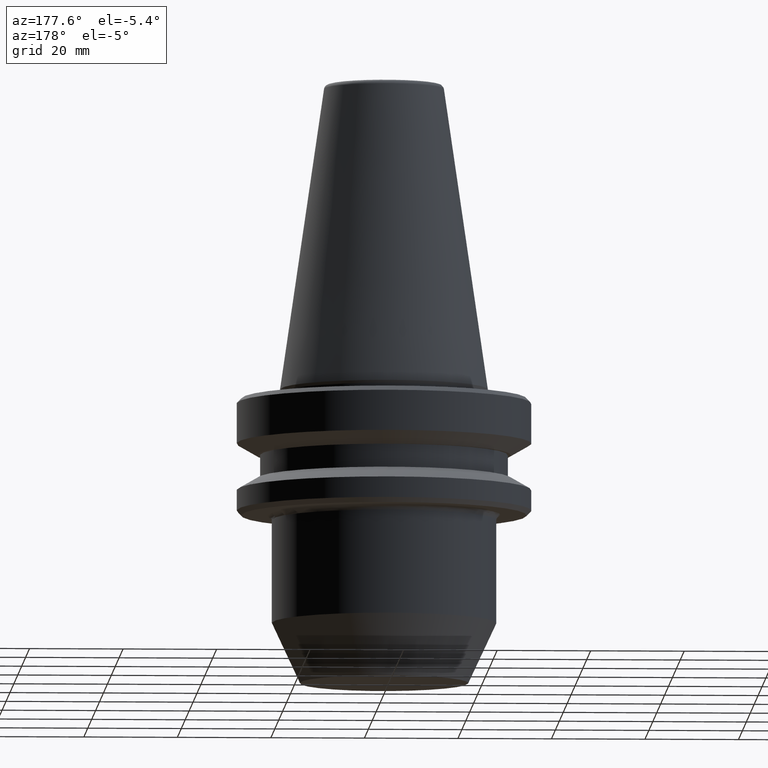
[diagram: clean part render]
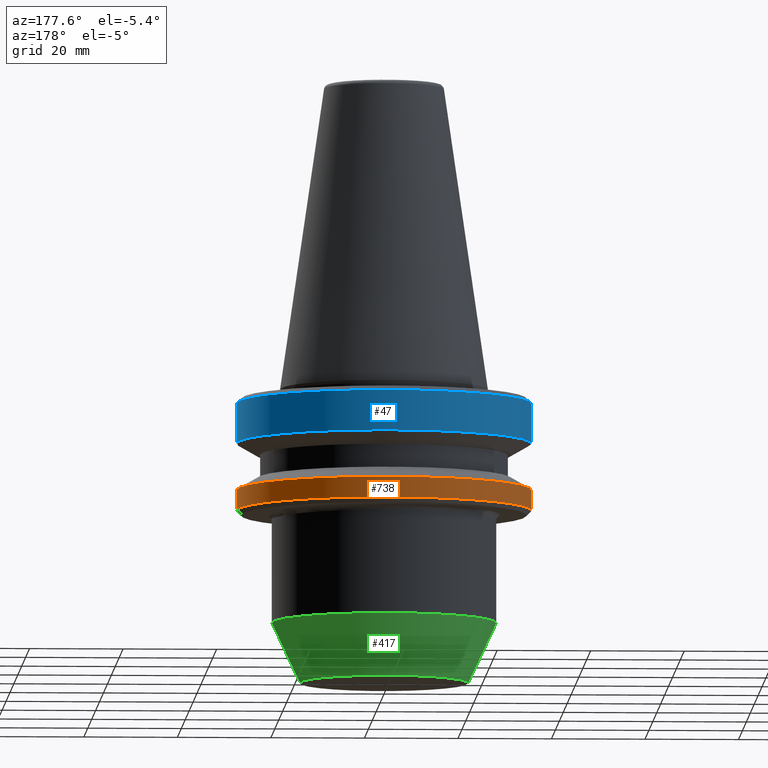
[diagram: same view with three faces highlighted in distinct colors, each labeled with its STEP entity id]
A machine part, auxiliary view with three faces highlighted in distinct colors.
Their STEP definitions:

[orange] entity #738 — the highlighted cylindrical surface (partial cylindrical patch) has radius 31.5 mm, axis along (-0, -0, 1).
#57 = ORIENTED_EDGE ( 'NONE', *, *, #1008, .T. ) ;
#64 = VECTOR ( 'NONE', #806, 1000.000000000000000 ) ;
#99 = CARTESIAN_POINT ( 'NONE',  ( -31.50000000000019500, 3.857637417314186400E-015, -25.31128678844346400 ) ) ;
#157 = VERTEX_POINT ( 'NONE', #99 ) ;
#183 = AXIS2_PLACEMENT_3D ( 'NONE', #757, #687, #272 ) ;
#192 = ORIENTED_EDGE ( 'NONE', *, *, #643, .T. ) ;
#232 = AXIS2_PLACEMENT_3D ( 'NONE', #519, #250, #366 ) ;
#250 = DIRECTION ( 'NONE',  ( -0.0000000000000000000, -0.0000000000000000000, 1.000000000000000000 ) ) ;
#272 = DIRECTION ( 'NONE',  ( 1.000000000000000000, 0.0000000000000000000, 0.0000000000000000000 ) ) ;
#289 = LINE ( 'NONE', #544, #906 ) ;
#292 = EDGE_LOOP ( 'NONE', ( #192, #57, #864, #689 ) ) ;
#366 = DIRECTION ( 'NONE',  ( 1.000000000000000000, 0.0000000000000000000, 0.0000000000000000000 ) ) ;
#367 = DIRECTION ( 'NONE',  ( -0.0000000000000000000, -0.0000000000000000000, 1.000000000000000000 ) ) ;
#369 = AXIS2_PLACEMENT_3D ( 'NONE', #1017, #945, #485 ) ;
#418 = CYLINDRICAL_SURFACE ( 'NONE', #183, 31.50000000000019500 ) ;
#436 = EDGE_CURVE ( 'NONE', #883, #709, #1027, .T. ) ;
#442 = FACE_OUTER_BOUND ( 'NONE', #292, .T. ) ;
#485 = DIRECTION ( 'NONE',  ( 1.000000000000000000, 0.0000000000000000000, 0.0000000000000000000 ) ) ;
#519 = CARTESIAN_POINT ( 'NONE',  ( 0.0000000000000000000, 0.0000000000000000000, -25.31128678844346400 ) ) ;
#544 = CARTESIAN_POINT ( 'NONE',  ( -31.50000000000019500, 3.857637417314186400E-015, 82.74845858742440900 ) ) ;
#578 = VERTEX_POINT ( 'NONE', #640 ) ;
#640 = CARTESIAN_POINT ( 'NONE',  ( 31.50000000000019500, 0.0000000000000000000, -25.31128678844346400 ) ) ;
#643 = EDGE_CURVE ( 'NONE', #578, #157, #877, .T. ) ;
#687 = DIRECTION ( 'NONE',  ( -0.0000000000000000000, -0.0000000000000000000, 1.000000000000000000 ) ) ;
#689 = ORIENTED_EDGE ( 'NONE', *, *, #997, .F. ) ;
#709 = VERTEX_POINT ( 'NONE', #1026 ) ;
#738 = ADVANCED_FACE ( 'NONE', ( #442 ), #418, .T. ) ;
#757 = CARTESIAN_POINT ( 'NONE',  ( 0.0000000000000000000, 0.0000000000000000000, 82.74845858742440900 ) ) ;
#806 = DIRECTION ( 'NONE',  ( -0.0000000000000000000, -0.0000000000000000000, 1.000000000000000000 ) ) ;
#864 = ORIENTED_EDGE ( 'NONE', *, *, #436, .F. ) ;
#877 = CIRCLE ( 'NONE', #232, 31.50000000000019500 ) ;
#883 = VERTEX_POINT ( 'NONE', #942 ) ;
#906 = VECTOR ( 'NONE', #367, 1000.000000000000000 ) ;
#911 = CARTESIAN_POINT ( 'NONE',  ( 31.50000000000019500, 0.0000000000000000000, 82.74845858742440900 ) ) ;
#926 = LINE ( 'NONE', #911, #64 ) ;
#942 = CARTESIAN_POINT ( 'NONE',  ( 31.50000000000019500, 0.0000000000000000000, -20.91142879476059900 ) ) ;
#945 = DIRECTION ( 'NONE',  ( -0.0000000000000000000, -0.0000000000000000000, 1.000000000000000000 ) ) ;
#997 = EDGE_CURVE ( 'NONE', #578, #883, #926, .T. ) ;
#1008 = EDGE_CURVE ( 'NONE', #157, #709, #289, .T. ) ;
#1017 = CARTESIAN_POINT ( 'NONE',  ( 0.0000000000000000000, 0.0000000000000000000, -20.91142879476059900 ) ) ;
#1026 = CARTESIAN_POINT ( 'NONE',  ( -31.50000000000019500, 3.857637417314186400E-015, -20.91142879476059900 ) ) ;
#1027 = CIRCLE ( 'NONE', #369, 31.50000000000019500 ) ;

[blue] entity #47 — the highlighted cylindrical surface (partial cylindrical patch) has radius 31.5 mm, axis along (-0, -0, 1).
#14 = ORIENTED_EDGE ( 'NONE', *, *, #431, .T. ) ;
#25 = CARTESIAN_POINT ( 'NONE',  ( 0.0000000000000000000, 0.0000000000000000000, 82.74845858742440900 ) ) ;
#35 = AXIS2_PLACEMENT_3D ( 'NONE', #25, #357, #737 ) ;
#47 = ADVANCED_FACE ( 'NONE', ( #124 ), #950, .T. ) ;
#117 = AXIS2_PLACEMENT_3D ( 'NONE', #331, #1007, #439 ) ;
#119 = LINE ( 'NONE', #144, #347 ) ;
#124 = FACE_OUTER_BOUND ( 'NONE', #712, .T. ) ;
#126 = VERTEX_POINT ( 'NONE', #204 ) ;
#144 = CARTESIAN_POINT ( 'NONE',  ( 31.49999999999986100, 0.0000000000000000000, 82.74845858742440900 ) ) ;
#166 = DIRECTION ( 'NONE',  ( -0.0000000000000000000, -0.0000000000000000000, 1.000000000000000000 ) ) ;
#204 = CARTESIAN_POINT ( 'NONE',  ( 31.49999999999986100, 0.0000000000000000000, -2.311286788340083400 ) ) ;
#275 = CIRCLE ( 'NONE', #407, 31.49999999999986100 ) ;
#331 = CARTESIAN_POINT ( 'NONE',  ( 0.0000000000000000000, 0.0000000000000000000, -2.311286788340083400 ) ) ;
#347 = VECTOR ( 'NONE', #944, 1000.000000000000000 ) ;
#357 = DIRECTION ( 'NONE',  ( -0.0000000000000000000, -0.0000000000000000000, 1.000000000000000000 ) ) ;
#382 = CARTESIAN_POINT ( 'NONE',  ( 31.49999999999986100, 0.0000000000000000000, -10.91114478202370800 ) ) ;
#407 = AXIS2_PLACEMENT_3D ( 'NONE', #999, #890, #582 ) ;
#413 = ORIENTED_EDGE ( 'NONE', *, *, #895, .F. ) ;
#428 = VERTEX_POINT ( 'NONE', #843 ) ;
#431 = EDGE_CURVE ( 'NONE', #791, #735, #275, .T. ) ;
#439 = DIRECTION ( 'NONE',  ( 1.000000000000000000, 0.0000000000000000000, 0.0000000000000000000 ) ) ;
#489 = ORIENTED_EDGE ( 'NONE', *, *, #892, .F. ) ;
#582 = DIRECTION ( 'NONE',  ( 1.000000000000000000, 0.0000000000000000000, 0.0000000000000000000 ) ) ;
#612 = EDGE_CURVE ( 'NONE', #735, #428, #720, .T. ) ;
#712 = EDGE_LOOP ( 'NONE', ( #14, #721, #413, #489 ) ) ;
#720 = LINE ( 'NONE', #725, #907 ) ;
#721 = ORIENTED_EDGE ( 'NONE', *, *, #612, .T. ) ;
#725 = CARTESIAN_POINT ( 'NONE',  ( -31.49999999999986100, 3.857637417314145300E-015, 82.74845858742440900 ) ) ;
#735 = VERTEX_POINT ( 'NONE', #1042 ) ;
#737 = DIRECTION ( 'NONE',  ( 1.000000000000000000, 0.0000000000000000000, 0.0000000000000000000 ) ) ;
#763 = CIRCLE ( 'NONE', #117, 31.49999999999986100 ) ;
#791 = VERTEX_POINT ( 'NONE', #382 ) ;
#843 = CARTESIAN_POINT ( 'NONE',  ( -31.49999999999986100, 3.857637417314145300E-015, -2.311286788340083400 ) ) ;
#890 = DIRECTION ( 'NONE',  ( -0.0000000000000000000, -0.0000000000000000000, 1.000000000000000000 ) ) ;
#892 = EDGE_CURVE ( 'NONE', #791, #126, #119, .T. ) ;
#895 = EDGE_CURVE ( 'NONE', #126, #428, #763, .T. ) ;
#907 = VECTOR ( 'NONE', #166, 1000.000000000000000 ) ;
#944 = DIRECTION ( 'NONE',  ( -0.0000000000000000000, -0.0000000000000000000, 1.000000000000000000 ) ) ;
#950 = CYLINDRICAL_SURFACE ( 'NONE', #35, 31.49999999999986100 ) ;
#999 = CARTESIAN_POINT ( 'NONE',  ( 0.0000000000000000000, 0.0000000000000000000, -10.91114478202370800 ) ) ;
#1007 = DIRECTION ( 'NONE',  ( -0.0000000000000000000, -0.0000000000000000000, 1.000000000000000000 ) ) ;
#1042 = CARTESIAN_POINT ( 'NONE',  ( -31.49999999999986100, 3.857637417314145300E-015, -10.91114478202370800 ) ) ;

[green] entity #417 — the highlighted conical surface has half-angle 25 deg.
#24 = CIRCLE ( 'NONE', #147, 18.00000000000000000 ) ;
#37 = EDGE_CURVE ( 'NONE', #647, #638, #766, .T. ) ;
#78 = AXIS2_PLACEMENT_3D ( 'NONE', #309, #351, #446 ) ;
#115 = CARTESIAN_POINT ( 'NONE',  ( -18.00000000000000000, 2.204364238465235400E-015, -62.31128678834036100 ) ) ;
#143 = CARTESIAN_POINT ( 'NONE',  ( -18.00000000000000000, 2.571758278209441300E-015, -62.31128678834036100 ) ) ;
#145 = EDGE_LOOP ( 'NONE', ( #1052, #381, #671, #899 ) ) ;
#147 = AXIS2_PLACEMENT_3D ( 'NONE', #982, #833, #408 ) ;
#172 = DIRECTION ( 'NONE',  ( 0.4226182617406930600, 0.0000000000000000000, 0.9063077870366529300 ) ) ;
#267 = CARTESIAN_POINT ( 'NONE',  ( -24.00000000000000000, 2.939152317953647900E-015, -49.44424526528276700 ) ) ;
#309 = CARTESIAN_POINT ( 'NONE',  ( 0.0000000000000000000, 0.0000000000000000000, -49.44424526528276700 ) ) ;
#330 = AXIS2_PLACEMENT_3D ( 'NONE', #505, #628, #954 ) ;
#351 = DIRECTION ( 'NONE',  ( -0.0000000000000000000, -0.0000000000000000000, 1.000000000000000000 ) ) ;
#381 = ORIENTED_EDGE ( 'NONE', *, *, #857, .T. ) ;
#408 = DIRECTION ( 'NONE',  ( 1.000000000000000000, 0.0000000000000000000, 0.0000000000000000000 ) ) ;
#417 = ADVANCED_FACE ( 'NONE', ( #690 ), #865, .T. ) ;
#425 = VECTOR ( 'NONE', #172, 1000.000000000000000 ) ;
#446 = DIRECTION ( 'NONE',  ( 1.000000000000000000, 0.0000000000000000000, 0.0000000000000000000 ) ) ;
#505 = CARTESIAN_POINT ( 'NONE',  ( 0.0000000000000000000, 0.0000000000000000000, -62.31128678834036100 ) ) ;
#597 = CARTESIAN_POINT ( 'NONE',  ( 18.00000000000000000, 0.0000000000000000000, -62.31128678834036100 ) ) ;
#618 = LINE ( 'NONE', #115, #1000 ) ;
#628 = DIRECTION ( 'NONE',  ( -0.0000000000000000000, -0.0000000000000000000, 1.000000000000000000 ) ) ;
#633 = VERTEX_POINT ( 'NONE', #597 ) ;
#638 = VERTEX_POINT ( 'NONE', #267 ) ;
#642 = LINE ( 'NONE', #802, #425 ) ;
#647 = VERTEX_POINT ( 'NONE', #896 ) ;
#671 = ORIENTED_EDGE ( 'NONE', *, *, #37, .F. ) ;
#690 = FACE_OUTER_BOUND ( 'NONE', #145, .T. ) ;
#766 = CIRCLE ( 'NONE', #78, 24.00000000000000000 ) ;
#797 = VERTEX_POINT ( 'NONE', #143 ) ;
#802 = CARTESIAN_POINT ( 'NONE',  ( 18.00000000000000000, 0.0000000000000000000, -62.31128678834036100 ) ) ;
#805 = EDGE_CURVE ( 'NONE', #633, #797, #24, .T. ) ;
#833 = DIRECTION ( 'NONE',  ( -0.0000000000000000000, -0.0000000000000000000, 1.000000000000000000 ) ) ;
#841 = EDGE_CURVE ( 'NONE', #633, #647, #642, .T. ) ;
#857 = EDGE_CURVE ( 'NONE', #797, #638, #618, .T. ) ;
#865 = CONICAL_SURFACE ( 'NONE', #330, 18.00000000000000000, 0.4363323129985753300 ) ;
#896 = CARTESIAN_POINT ( 'NONE',  ( 24.00000000000000000, 0.0000000000000000000, -49.44424526528276700 ) ) ;
#899 = ORIENTED_EDGE ( 'NONE', *, *, #841, .F. ) ;
#914 = DIRECTION ( 'NONE',  ( -0.4226182617406930600, 5.175581015019580500E-017, 0.9063077870366529300 ) ) ;
#954 = DIRECTION ( 'NONE',  ( 1.000000000000000000, 0.0000000000000000000, 0.0000000000000000000 ) ) ;
#982 = CARTESIAN_POINT ( 'NONE',  ( 0.0000000000000000000, 0.0000000000000000000, -62.31128678834036100 ) ) ;
#1000 = VECTOR ( 'NONE', #914, 1000.000000000000000 ) ;
#1052 = ORIENTED_EDGE ( 'NONE', *, *, #805, .T. ) ;